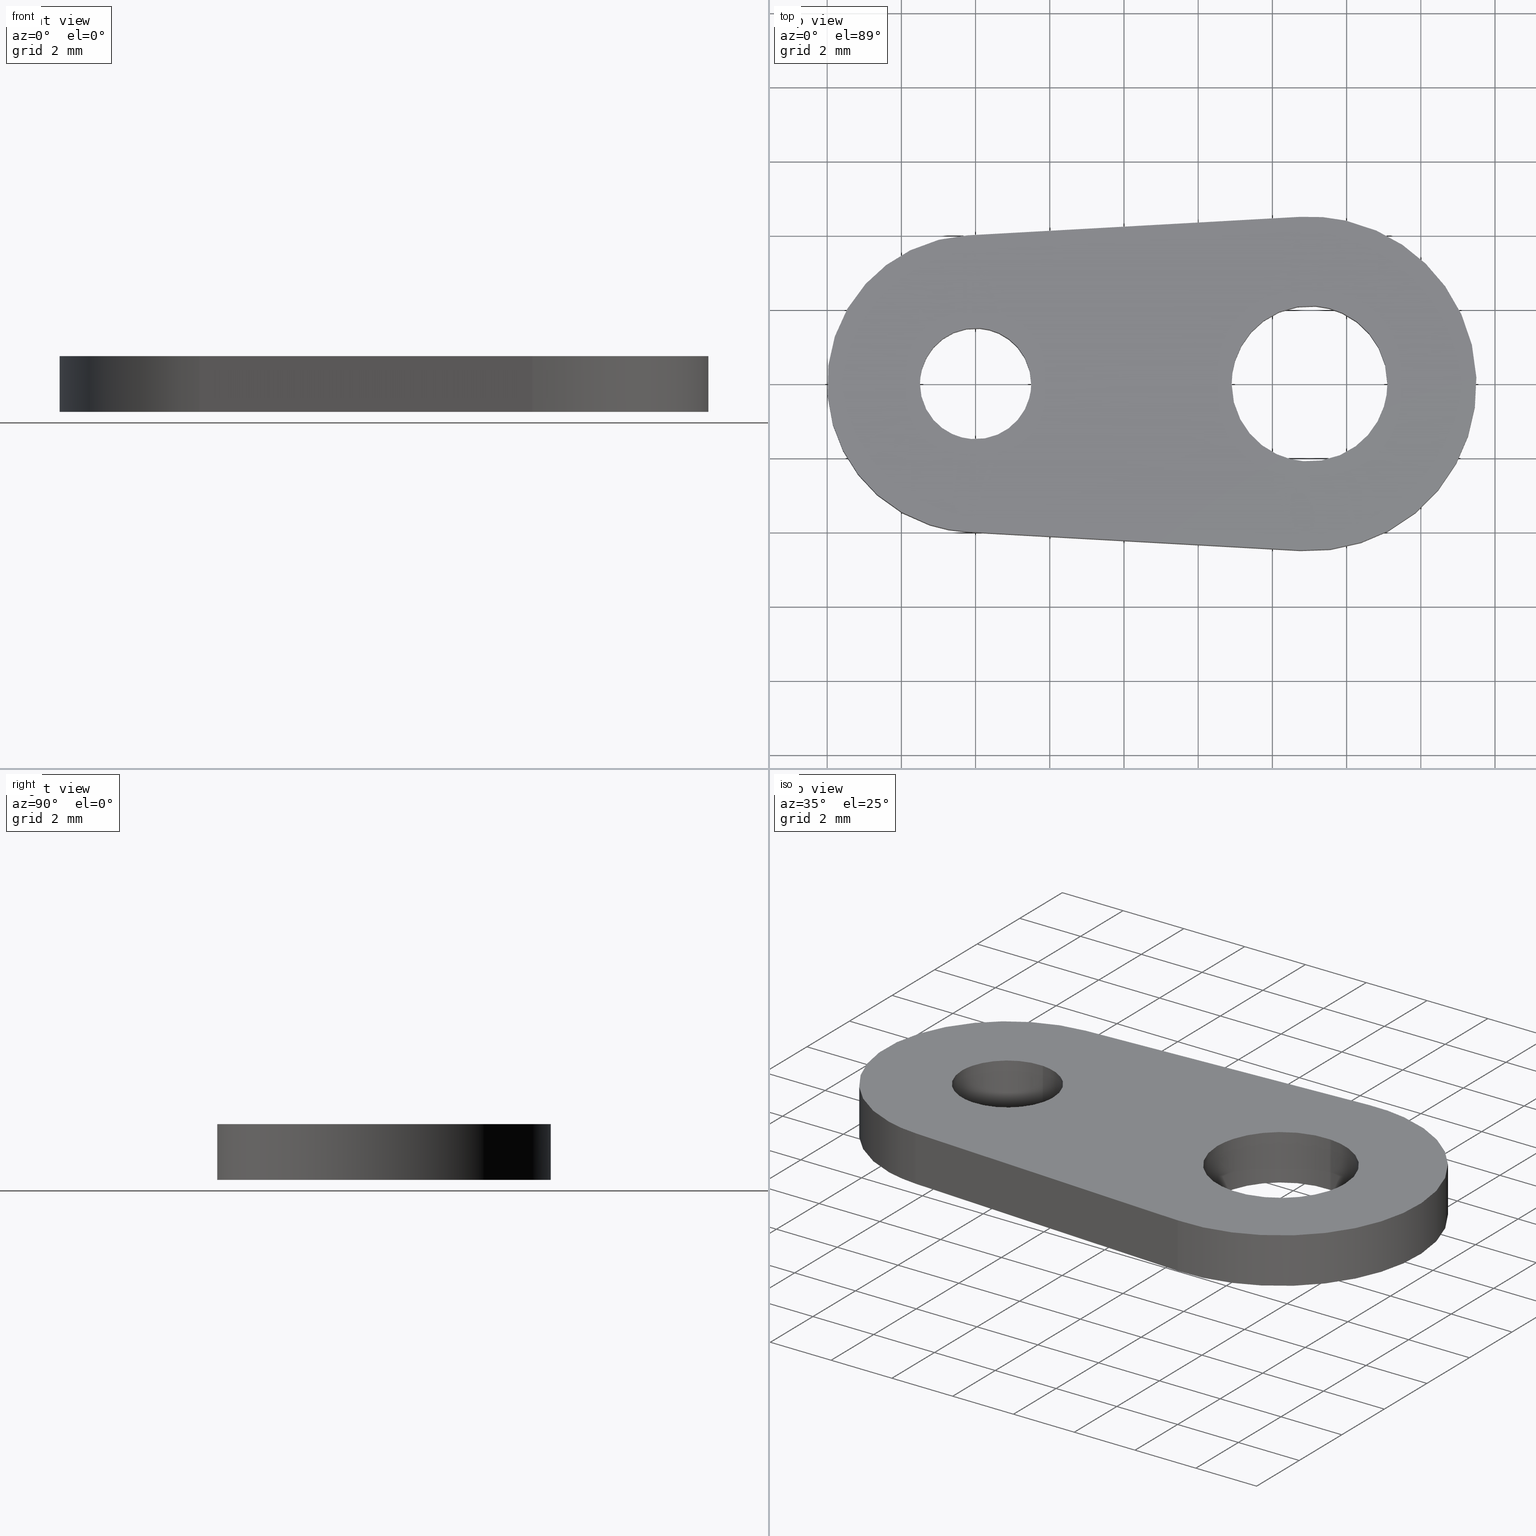
[diagram: canonical four-view strip — front | top / right | iso, engineering-drawing reading convention]
A machine part, canonical four-view strip (front | top / right | iso — engineering-drawing reading convention). The complete STEP part file that produces these views, byte-faithful:
ISO-10303-21;
HEADER;
/****************************************************************
 * Generated by software with PDE/Lib inside                    *
 * PDElib Version 4.4.1-0003, patched  Thursday August 19 11:58 *
 * International Technegroup Inc. (www.iti-oh.com)              *
 ****************************************************************/
FILE_DESCRIPTION((''),'2;1');
FILE_NAME('','2005-12-14T15:38:15',(''),(''),'','CADfix','');
FILE_SCHEMA(('AUTOMOTIVE_DESIGN'));
ENDSEC;
DATA;
#5=APPLICATION_CONTEXT('automotive design');
#6=APPLICATION_PROTOCOL_DEFINITION('Draft International Standard','automotive_design',1998,#5);
#7=PRODUCT_CONTEXT('None',#5,'mechanical');
#8=PRODUCT('terminal','','None',(#7));
#9=PRODUCT_RELATED_PRODUCT_CATEGORY('part','description',(#8));
#10=PRODUCT_DEFINITION_FORMATION('None','None',#8);
#11=PRODUCT_DEFINITION_CONTEXT('part definition',#5,'design');
#12=PRODUCT_DEFINITION('None','None',#10,#11);
#18=(NAMED_UNIT(*)PLANE_ANGLE_UNIT()SI_UNIT($,.RADIAN.));
#19=DIMENSIONAL_EXPONENTS(0.0,0.0,0.0,0.0,0.0,0.0,0.0);
#20=PLANE_ANGLE_MEASURE_WITH_UNIT(PLANE_ANGLE_MEASURE(0.017453292500000),#18);
#24=(CONVERSION_BASED_UNIT('DEGREE',#20)NAMED_UNIT(#19)PLANE_ANGLE_UNIT());
#28=(NAMED_UNIT(*)SI_UNIT($,.STERADIAN.)SOLID_ANGLE_UNIT());
#32=(LENGTH_UNIT()NAMED_UNIT(*)SI_UNIT(.MILLI.,.METRE.));
#34=UNCERTAINTY_MEASURE_WITH_UNIT(LENGTH_MEASURE(0.001000000000000),#32,'DISTANCE_ACCURACY_VALUE','');
#36=(GEOMETRIC_REPRESENTATION_CONTEXT(3)GLOBAL_UNCERTAINTY_ASSIGNED_CONTEXT((#34))GLOBAL_UNIT_ASSIGNED_CONTEXT((#24,#28,#32))REPRESENTATION_CONTEXT('None','None'));
#37=AXIS2_PLACEMENT_3D('',#38,#39,#40);
#38=CARTESIAN_POINT('',(0.0,0.0,0.0));
#39=DIRECTION('',(0.0,0.0,1.0));
#40=DIRECTION('',(1.0,0.0,0.0));
#41=ADVANCED_BREP_SHAPE_REPRESENTATION('',(#37,#639),#36);
#42=PRODUCT_DEFINITION_SHAPE('','',#12);
#43=SHAPE_DEFINITION_REPRESENTATION(#42,#41);
#44=CARTESIAN_POINT('',(-0.117688643591768,-1.495376000599691,1.537499999999945));
#45=CARTESIAN_POINT('',(-1.613064644191460,-1.377687357007923,1.537499999999945));
#46=CARTESIAN_POINT('',(-1.495376000599691,0.117688643591768,1.537499999999945));
#47=CARTESIAN_POINT('',(-1.377687357007923,1.613064644191460,1.537499999999945));
#48=CARTESIAN_POINT('',(0.117688643591768,1.495376000599691,1.537499999999945));
#49=CARTESIAN_POINT('',(-0.117688643591768,-1.495376000599691,-0.038437499999999));
#50=CARTESIAN_POINT('',(-1.613064644191460,-1.377687357007923,-0.038437499999999));
#51=CARTESIAN_POINT('',(-1.495376000599691,0.117688643591768,-0.038437499999999));
#52=CARTESIAN_POINT('',(-1.377687357007923,1.613064644191460,-0.038437499999999));
#53=CARTESIAN_POINT('',(0.117688643591768,1.495376000599691,-0.038437499999999));
#61=(BOUNDED_SURFACE()B_SPLINE_SURFACE(2,1,((#44,#49),(#45,#50),(#46,#51),(#47,#52),(#48,#53)),.UNSPECIFIED.,.F.,.F.,.U.)B_SPLINE_SURFACE_WITH_KNOTS((3,2,3),(2,2),(3.141592653589793,4.712388980384690,6.283185307179586),(0.0,1.0),.UNSPECIFIED.)GEOMETRIC_REPRESENTATION_ITEM()RATIONAL_B_SPLINE_SURFACE(((1.0,1.0),(0.707106781186548,0.707106781186548),(1.0,1.0),(0.707106781186548,0.707106781186548),(1.0,1.0)))REPRESENTATION_ITEM('')SURFACE());
#62=CARTESIAN_POINT('',(-1.500000000000000,0.0,0.0));
#63=VERTEX_POINT('',#62);
#64=CARTESIAN_POINT('',(-0.117688565662104,-1.495376006732885,1.318390E-016));
#65=VERTEX_POINT('',#64);
#66=CARTESIAN_POINT('',(-1.500000000000000,0.0,0.0));
#67=CARTESIAN_POINT('',(-1.500000000000000,-1.386585882454591,0.0));
#68=CARTESIAN_POINT('',(-0.117688565662104,-1.495376006732886,1.318390E-016));
#76=(BOUNDED_CURVE()B_SPLINE_CURVE(2,(#66,#67,#68),.UNSPECIFIED.,.F.,.U.)B_SPLINE_CURVE_WITH_KNOTS((3,3),(0.0,0.236331318499916),.UNSPECIFIED.)CURVE()GEOMETRIC_REPRESENTATION_ITEM()RATIONAL_B_SPLINE_CURVE((1.0,0.723120637672529,0.969723393459196))REPRESENTATION_ITEM(''));
#77=EDGE_CURVE('',#63,#65,#76,.T.);
#78=ORIENTED_EDGE('',*,*,#77,.F.);
#79=CARTESIAN_POINT('',(0.117688565662104,1.495376006732885,1.318390E-016));
#80=VERTEX_POINT('',#79);
#81=CARTESIAN_POINT('',(0.117688565662104,1.495376006732885,1.318390E-016));
#82=CARTESIAN_POINT('',(0.058935082220194,1.500000000000000,0.0));
#83=CARTESIAN_POINT('',(0.0,1.500000000000000,0.0));
#84=CARTESIAN_POINT('',(-1.500000000000000,1.500000000000000,0.0));
#85=CARTESIAN_POINT('',(-1.500000000000000,0.0,0.0));
#93=(BOUNDED_CURVE()B_SPLINE_CURVE(2,(#81,#82,#83,#84,#85),.UNSPECIFIED.,.F.,.U.)B_SPLINE_CURVE_WITH_KNOTS((3,2,3),(0.736331318499916,0.750000000000000,1.0),.UNSPECIFIED.)CURVE()GEOMETRIC_REPRESENTATION_ITEM()RATIONAL_B_SPLINE_CURVE((0.969723393459196,0.983986143514018,1.0,0.707106781186548,1.0))REPRESENTATION_ITEM(''));
#94=EDGE_CURVE('',#80,#63,#93,.T.);
#95=ORIENTED_EDGE('',*,*,#94,.F.);
#96=CARTESIAN_POINT('',(0.117688566621308,1.495376006657394,1.499999999999946));
#97=VERTEX_POINT('',#96);
#98=CARTESIAN_POINT('',(0.117688566621308,1.495376006657394,1.499999999999946));
#99=CARTESIAN_POINT('',(0.117688565662104,1.495376006732885,1.318390E-016));
#100=QUASI_UNIFORM_CURVE('',1,(#98,#99),.UNSPECIFIED.,.F.,.U.);
#101=EDGE_CURVE('',#97,#80,#100,.T.);
#102=ORIENTED_EDGE('',*,*,#101,.F.);
#103=CARTESIAN_POINT('',(-1.500000000000000,0.0,1.499999999999946));
#104=VERTEX_POINT('',#103);
#105=CARTESIAN_POINT('',(0.117688566621308,1.495376006657395,1.499999999999946));
#106=CARTESIAN_POINT('',(0.058935083183849,1.500000000000000,1.499999999999946));
#107=CARTESIAN_POINT('',(0.0,1.500000000000000,1.499999999999946));
#108=CARTESIAN_POINT('',(-1.500000000000000,1.500000000000000,1.499999999999946));
#109=CARTESIAN_POINT('',(-1.500000000000000,0.0,1.499999999999946));
#117=(BOUNDED_CURVE()B_SPLINE_CURVE(2,(#105,#106,#107,#108,#109),.UNSPECIFIED.,.F.,.U.)B_SPLINE_CURVE_WITH_KNOTS((3,2,3),(0.736331318279997,0.750000000000000,1.0),.UNSPECIFIED.)CURVE()GEOMETRIC_REPRESENTATION_ITEM()RATIONAL_B_SPLINE_CURVE((0.969723393000241,0.983986143256367,1.0,0.707106781186548,1.0))REPRESENTATION_ITEM(''));
#118=EDGE_CURVE('',#97,#104,#117,.T.);
#119=ORIENTED_EDGE('',*,*,#118,.T.);
#120=CARTESIAN_POINT('',(-0.117688566621308,-1.495376006657394,1.499999999999946));
#121=VERTEX_POINT('',#120);
#122=CARTESIAN_POINT('',(-1.500000000000000,0.0,1.499999999999946));
#123=CARTESIAN_POINT('',(-1.500000000000000,-1.386585880670251,1.499999999999946));
#124=CARTESIAN_POINT('',(-0.117688566621308,-1.495376006657395,1.499999999999945));
#132=(BOUNDED_CURVE()B_SPLINE_CURVE(2,(#122,#123,#124),.UNSPECIFIED.,.F.,.U.)B_SPLINE_CURVE_WITH_KNOTS((3,3),(0.0,0.236331318279997),.UNSPECIFIED.)CURVE()GEOMETRIC_REPRESENTATION_ITEM()RATIONAL_B_SPLINE_CURVE((1.0,0.723120637930181,0.969723393000241))REPRESENTATION_ITEM(''));
#133=EDGE_CURVE('',#104,#121,#132,.T.);
#134=ORIENTED_EDGE('',*,*,#133,.T.);
#135=CARTESIAN_POINT('',(-0.117688566621308,-1.495376006657394,1.499999999999946));
#136=CARTESIAN_POINT('',(-0.117688565662104,-1.495376006732885,1.318390E-016));
#137=QUASI_UNIFORM_CURVE('',1,(#135,#136),.UNSPECIFIED.,.F.,.U.);
#138=EDGE_CURVE('',#121,#65,#137,.T.);
#139=ORIENTED_EDGE('',*,*,#138,.T.);
#140=EDGE_LOOP('',(#78,#95,#102,#119,#134,#139));
#141=FACE_OUTER_BOUND('',#140,.T.);
#142=ADVANCED_FACE('',(#141),#61,.F.);
#143=CARTESIAN_POINT('',(0.117688643591768,1.495376000599691,1.537499999999945));
#144=CARTESIAN_POINT('',(1.613064644191460,1.377687357007923,1.537499999999945));
#145=CARTESIAN_POINT('',(1.495376000599691,-0.117688643591768,1.537499999999945));
#146=CARTESIAN_POINT('',(1.377687357007923,-1.613064644191460,1.537499999999945));
#147=CARTESIAN_POINT('',(-0.117688643591768,-1.495376000599691,1.537499999999945));
#148=CARTESIAN_POINT('',(0.117688643591768,1.495376000599691,-0.038437499999999));
#149=CARTESIAN_POINT('',(1.613064644191460,1.377687357007923,-0.038437499999999));
#150=CARTESIAN_POINT('',(1.495376000599691,-0.117688643591768,-0.038437499999999));
#151=CARTESIAN_POINT('',(1.377687357007923,-1.613064644191460,-0.038437499999999));
#152=CARTESIAN_POINT('',(-0.117688643591768,-1.495376000599691,-0.038437499999999));
#160=(BOUNDED_SURFACE()B_SPLINE_SURFACE(2,1,((#143,#148),(#144,#149),(#145,#150),(#146,#151),(#147,#152)),.UNSPECIFIED.,.F.,.F.,.U.)B_SPLINE_SURFACE_WITH_KNOTS((3,2,3),(2,2),(0.0,1.570796326794897,3.141592653589793),(0.0,1.0),.UNSPECIFIED.)GEOMETRIC_REPRESENTATION_ITEM()RATIONAL_B_SPLINE_SURFACE(((1.0,1.0),(0.707106781186548,0.707106781186548),(1.0,1.0),(0.707106781186548,0.707106781186548),(1.0,1.0)))REPRESENTATION_ITEM('')SURFACE());
#161=CARTESIAN_POINT('',(1.500000000000000,0.0,0.0));
#162=VERTEX_POINT('',#161);
#163=CARTESIAN_POINT('',(-0.117688565662104,-1.495376006732885,1.318390E-016));
#164=CARTESIAN_POINT('',(-0.058935082220194,-1.500000000000000,0.0));
#165=CARTESIAN_POINT('',(0.0,-1.500000000000000,0.0));
#166=CARTESIAN_POINT('',(1.500000000000000,-1.500000000000000,0.0));
#167=CARTESIAN_POINT('',(1.500000000000000,0.0,0.0));
#175=(BOUNDED_CURVE()B_SPLINE_CURVE(2,(#163,#164,#165,#166,#167),.UNSPECIFIED.,.F.,.U.)B_SPLINE_CURVE_WITH_KNOTS((3,2,3),(0.236331318499916,0.250000000000000,0.500000000000000),.UNSPECIFIED.)CURVE()GEOMETRIC_REPRESENTATION_ITEM()RATIONAL_B_SPLINE_CURVE((0.969723393459196,0.983986143514018,1.0,0.707106781186548,1.0))REPRESENTATION_ITEM(''));
#176=EDGE_CURVE('',#65,#162,#175,.T.);
#177=ORIENTED_EDGE('',*,*,#176,.F.);
#178=ORIENTED_EDGE('',*,*,#138,.F.);
#179=CARTESIAN_POINT('',(1.500000000000000,0.0,1.499999999999946));
#180=VERTEX_POINT('',#179);
#181=CARTESIAN_POINT('',(-0.117688566621308,-1.495376006657395,1.499999999999946));
#182=CARTESIAN_POINT('',(-0.058935083183849,-1.500000000000000,1.499999999999946));
#183=CARTESIAN_POINT('',(0.0,-1.500000000000000,1.499999999999946));
#184=CARTESIAN_POINT('',(1.500000000000000,-1.500000000000000,1.499999999999946));
#185=CARTESIAN_POINT('',(1.500000000000000,0.0,1.499999999999946));
#193=(BOUNDED_CURVE()B_SPLINE_CURVE(2,(#181,#182,#183,#184,#185),.UNSPECIFIED.,.F.,.U.)B_SPLINE_CURVE_WITH_KNOTS((3,2,3),(0.236331318279997,0.250000000000000,0.500000000000000),.UNSPECIFIED.)CURVE()GEOMETRIC_REPRESENTATION_ITEM()RATIONAL_B_SPLINE_CURVE((0.969723393000241,0.983986143256367,1.0,0.707106781186548,1.0))REPRESENTATION_ITEM(''));
#194=EDGE_CURVE('',#121,#180,#193,.T.);
#195=ORIENTED_EDGE('',*,*,#194,.T.);
#196=CARTESIAN_POINT('',(1.500000000000000,0.0,1.499999999999946));
#197=CARTESIAN_POINT('',(1.500000000000000,1.386585880670247,1.499999999999946));
#198=CARTESIAN_POINT('',(0.117688566621308,1.495376006657394,1.499999999999946));
#206=(BOUNDED_CURVE()B_SPLINE_CURVE(2,(#196,#197,#198),.UNSPECIFIED.,.F.,.U.)B_SPLINE_CURVE_WITH_KNOTS((3,3),(0.500000000000000,0.736331318279996),.UNSPECIFIED.)CURVE()GEOMETRIC_REPRESENTATION_ITEM()RATIONAL_B_SPLINE_CURVE((1.0,0.723120637930181,0.969723393000240))REPRESENTATION_ITEM(''));
#207=EDGE_CURVE('',#180,#97,#206,.T.);
#208=ORIENTED_EDGE('',*,*,#207,.T.);
#209=ORIENTED_EDGE('',*,*,#101,.T.);
#210=CARTESIAN_POINT('',(1.500000000000000,0.0,0.0));
#211=CARTESIAN_POINT('',(1.500000000000000,1.386585882454591,0.0));
#212=CARTESIAN_POINT('',(0.117688565662104,1.495376006732886,1.318390E-016));
#220=(BOUNDED_CURVE()B_SPLINE_CURVE(2,(#210,#211,#212),.UNSPECIFIED.,.F.,.U.)B_SPLINE_CURVE_WITH_KNOTS((3,3),(0.500000000000000,0.736331318499916),.UNSPECIFIED.)CURVE()GEOMETRIC_REPRESENTATION_ITEM()RATIONAL_B_SPLINE_CURVE((1.0,0.723120637672529,0.969723393459196))REPRESENTATION_ITEM(''));
#221=EDGE_CURVE('',#162,#80,#220,.T.);
#222=ORIENTED_EDGE('',*,*,#221,.F.);
#223=EDGE_LOOP('',(#177,#178,#195,#208,#209,#222));
#224=FACE_OUTER_BOUND('',#223,.T.);
#225=ADVANCED_FACE('',(#224),#160,.F.);
#226=CARTESIAN_POINT('',(8.835235898971524,-2.093526400839568,1.537499999999945));
#227=CARTESIAN_POINT('',(6.741709498131957,-1.928762299811092,1.537499999999945));
#228=CARTESIAN_POINT('',(6.906473599160432,0.164764101028476,1.537499999999945));
#229=CARTESIAN_POINT('',(7.071237700188908,2.258290501868045,1.537499999999945));
#230=CARTESIAN_POINT('',(9.164764101028476,2.093526400839568,1.537499999999945));
#231=CARTESIAN_POINT('',(8.835235898971524,-2.093526400839568,-0.038437499999999));
#232=CARTESIAN_POINT('',(6.741709498131957,-1.928762299811092,-0.038437499999999));
#233=CARTESIAN_POINT('',(6.906473599160432,0.164764101028476,-0.038437499999999));
#234=CARTESIAN_POINT('',(7.071237700188908,2.258290501868045,-0.038437499999999));
#235=CARTESIAN_POINT('',(9.164764101028476,2.093526400839568,-0.038437499999999));
#243=(BOUNDED_SURFACE()B_SPLINE_SURFACE(2,1,((#226,#231),(#227,#232),(#228,#233),(#229,#234),(#230,#235)),.UNSPECIFIED.,.F.,.F.,.U.)B_SPLINE_SURFACE_WITH_KNOTS((3,2,3),(2,2),(0.0,3.479393923934000,6.958787847867999),(0.0,1.0),.UNSPECIFIED.)GEOMETRIC_REPRESENTATION_ITEM()RATIONAL_B_SPLINE_SURFACE(((1.0,1.0),(0.707106781186548,0.707106781186548),(1.0,1.0),(0.707106781186548,0.707106781186548),(1.0,1.0)))REPRESENTATION_ITEM('')SURFACE());
#244=CARTESIAN_POINT('',(6.900000000000000,0.0,0.0));
#245=VERTEX_POINT('',#244);
#246=CARTESIAN_POINT('',(8.835236821771373,-2.093526473465082,7.566864E-015));
#247=VERTEX_POINT('',#246);
#248=CARTESIAN_POINT('',(6.900000000000000,0.0,0.0));
#249=CARTESIAN_POINT('',(6.900000000000000,-1.941221749104916,0.0));
#250=CARTESIAN_POINT('',(8.835236821771373,-2.093526473465082,7.566864E-015));
#258=(BOUNDED_CURVE()B_SPLINE_CURVE(2,(#248,#249,#250),.UNSPECIFIED.,.F.,.U.)B_SPLINE_CURVE_WITH_KNOTS((3,3),(0.0,0.236331451756262),.UNSPECIFIED.)CURVE()GEOMETRIC_REPRESENTATION_ITEM()RATIONAL_B_SPLINE_CURVE((1.0,0.723120481553009,0.969723671555235))REPRESENTATION_ITEM(''));
#259=EDGE_CURVE('',#245,#247,#258,.T.);
#260=ORIENTED_EDGE('',*,*,#259,.F.);
#261=CARTESIAN_POINT('',(9.164763178228631,2.093526473465082,7.743806E-015));
#262=VERTEX_POINT('',#261);
#263=CARTESIAN_POINT('',(9.164763178228631,2.093526473465082,7.743806E-015));
#264=CARTESIAN_POINT('',(9.082508297633888,2.099999999999999,0.0));
#265=CARTESIAN_POINT('',(9.0,2.100000000000000,0.0));
#266=CARTESIAN_POINT('',(6.900000000000000,2.100000000000000,0.0));
#267=CARTESIAN_POINT('',(6.900000000000000,0.0,0.0));
#275=(BOUNDED_CURVE()B_SPLINE_CURVE(2,(#263,#264,#265,#266,#267),.UNSPECIFIED.,.F.,.U.)B_SPLINE_CURVE_WITH_KNOTS((3,2,3),(0.736331451756262,0.750000000000000,1.0),.UNSPECIFIED.)CURVE()GEOMETRIC_REPRESENTATION_ITEM()RATIONAL_B_SPLINE_CURVE((0.969723671555235,0.983986299633538,1.0,0.707106781186548,1.0))REPRESENTATION_ITEM(''));
#276=EDGE_CURVE('',#262,#245,#275,.T.);
#277=ORIENTED_EDGE('',*,*,#276,.F.);
#278=CARTESIAN_POINT('',(9.164763189592669,2.093526472570723,1.499999999999946));
#279=VERTEX_POINT('',#278);
#280=CARTESIAN_POINT('',(9.164763189592669,2.093526472570723,1.499999999999946));
#281=CARTESIAN_POINT('',(9.164763178228631,2.093526473465082,7.743806E-015));
#282=QUASI_UNIFORM_CURVE('',1,(#280,#281),.UNSPECIFIED.,.F.,.U.);
#283=EDGE_CURVE('',#279,#262,#282,.T.);
#284=ORIENTED_EDGE('',*,*,#283,.F.);
#285=CARTESIAN_POINT('',(6.900000000000000,0.0,1.499999999999946));
#286=VERTEX_POINT('',#285);
#287=CARTESIAN_POINT('',(9.164763189592669,2.093526472570723,1.499999999999946));
#288=CARTESIAN_POINT('',(9.082508309050661,2.100000000000001,1.499999999999947));
#289=CARTESIAN_POINT('',(9.0,2.100000000000000,1.499999999999946));
#290=CARTESIAN_POINT('',(6.900000000000000,2.100000000000000,1.499999999999946));
#291=CARTESIAN_POINT('',(6.900000000000000,0.0,1.499999999999946));
#299=(BOUNDED_CURVE()B_SPLINE_CURVE(2,(#287,#288,#289,#290,#291),.UNSPECIFIED.,.F.,.U.)B_SPLINE_CURVE_WITH_KNOTS((3,2,3),(0.736331449895215,0.750000000000000,1.0),.UNSPECIFIED.)CURVE()GEOMETRIC_REPRESENTATION_ITEM()RATIONAL_B_SPLINE_CURVE((0.969723667671367,0.983986297453187,1.0,0.707106781186548,1.0))REPRESENTATION_ITEM(''));
#300=EDGE_CURVE('',#279,#286,#299,.T.);
#301=ORIENTED_EDGE('',*,*,#300,.T.);
#302=CARTESIAN_POINT('',(8.835236810407334,-2.093526472570723,1.499999999999946));
#303=VERTEX_POINT('',#302);
#304=CARTESIAN_POINT('',(6.900000000000000,0.0,1.499999999999946));
#305=CARTESIAN_POINT('',(6.900000000000000,-1.941221727965150,1.499999999999947));
#306=CARTESIAN_POINT('',(8.835236810407334,-2.093526472570723,1.499999999999946));
#314=(BOUNDED_CURVE()B_SPLINE_CURVE(2,(#304,#305,#306),.UNSPECIFIED.,.F.,.U.)B_SPLINE_CURVE_WITH_KNOTS((3,3),(0.0,0.236331449895216),.UNSPECIFIED.)CURVE()GEOMETRIC_REPRESENTATION_ITEM()RATIONAL_B_SPLINE_CURVE((1.0,0.723120483733360,0.969723667671368))REPRESENTATION_ITEM(''));
#315=EDGE_CURVE('',#286,#303,#314,.T.);
#316=ORIENTED_EDGE('',*,*,#315,.T.);
#317=CARTESIAN_POINT('',(8.835236810407334,-2.093526472570723,1.499999999999946));
#318=CARTESIAN_POINT('',(8.835236821771373,-2.093526473465082,7.566864E-015));
#319=QUASI_UNIFORM_CURVE('',1,(#317,#318),.UNSPECIFIED.,.F.,.U.);
#320=EDGE_CURVE('',#303,#247,#319,.T.);
#321=ORIENTED_EDGE('',*,*,#320,.T.);
#322=EDGE_LOOP('',(#260,#277,#284,#301,#316,#321));
#323=FACE_OUTER_BOUND('',#322,.T.);
#324=ADVANCED_FACE('',(#323),#243,.F.);
#325=CARTESIAN_POINT('',(9.164764101028476,2.093526400839568,1.537499999999945));
#326=CARTESIAN_POINT('',(11.258290501868046,1.928762299811092,1.537499999999945));
#327=CARTESIAN_POINT('',(11.093526400839570,-0.164764101028476,1.537499999999945));
#328=CARTESIAN_POINT('',(10.928762299811092,-2.258290501868045,1.537499999999945));
#329=CARTESIAN_POINT('',(8.835235898971524,-2.093526400839568,1.537499999999945));
#330=CARTESIAN_POINT('',(9.164764101028476,2.093526400839568,-0.038437499999999));
#331=CARTESIAN_POINT('',(11.258290501868046,1.928762299811092,-0.038437499999999));
#332=CARTESIAN_POINT('',(11.093526400839570,-0.164764101028476,-0.038437499999999));
#333=CARTESIAN_POINT('',(10.928762299811092,-2.258290501868045,-0.038437499999999));
#334=CARTESIAN_POINT('',(8.835235898971524,-2.093526400839568,-0.038437499999999));
#342=(BOUNDED_SURFACE()B_SPLINE_SURFACE(2,1,((#325,#330),(#326,#331),(#327,#332),(#328,#333),(#329,#334)),.UNSPECIFIED.,.F.,.F.,.U.)B_SPLINE_SURFACE_WITH_KNOTS((3,2,3),(2,2),(0.0,3.479393923933999,6.958787847867998),(0.0,1.0),.UNSPECIFIED.)GEOMETRIC_REPRESENTATION_ITEM()RATIONAL_B_SPLINE_SURFACE(((1.0,1.0),(0.707106781186548,0.707106781186548),(1.0,1.0),(0.707106781186548,0.707106781186548),(1.0,1.0)))REPRESENTATION_ITEM('')SURFACE());
#343=CARTESIAN_POINT('',(11.100000000000000,0.0,0.0));
#344=VERTEX_POINT('',#343);
#345=CARTESIAN_POINT('',(8.835236821771373,-2.093526473465082,7.566864E-015));
#346=CARTESIAN_POINT('',(8.917491702366116,-2.100000000000001,0.0));
#347=CARTESIAN_POINT('',(9.0,-2.100000000000000,0.0));
#348=CARTESIAN_POINT('',(11.100000000000000,-2.100000000000000,0.0));
#349=CARTESIAN_POINT('',(11.100000000000000,0.0,0.0));
#357=(BOUNDED_CURVE()B_SPLINE_CURVE(2,(#345,#346,#347,#348,#349),.UNSPECIFIED.,.F.,.U.)B_SPLINE_CURVE_WITH_KNOTS((3,2,3),(0.236331451756262,0.250000000000000,0.500000000000000),.UNSPECIFIED.)CURVE()GEOMETRIC_REPRESENTATION_ITEM()RATIONAL_B_SPLINE_CURVE((0.969723671555236,0.983986299633539,1.0,0.707106781186548,1.0))REPRESENTATION_ITEM(''));
#358=EDGE_CURVE('',#247,#344,#357,.T.);
#359=ORIENTED_EDGE('',*,*,#358,.F.);
#360=ORIENTED_EDGE('',*,*,#320,.F.);
#361=CARTESIAN_POINT('',(11.100000000000000,0.0,1.499999999999946));
#362=VERTEX_POINT('',#361);
#363=CARTESIAN_POINT('',(8.835236810407334,-2.093526472570723,1.499999999999946));
#364=CARTESIAN_POINT('',(8.917491690949342,-2.100000000000000,1.499999999999946));
#365=CARTESIAN_POINT('',(9.0,-2.100000000000000,1.499999999999946));
#366=CARTESIAN_POINT('',(11.100000000000000,-2.100000000000000,1.499999999999946));
#367=CARTESIAN_POINT('',(11.100000000000000,0.0,1.499999999999946));
#375=(BOUNDED_CURVE()B_SPLINE_CURVE(2,(#363,#364,#365,#366,#367),.UNSPECIFIED.,.F.,.U.)B_SPLINE_CURVE_WITH_KNOTS((3,2,3),(0.236331449895216,0.250000000000000,0.500000000000000),.UNSPECIFIED.)CURVE()GEOMETRIC_REPRESENTATION_ITEM()RATIONAL_B_SPLINE_CURVE((0.969723667671368,0.983986297453187,1.0,0.707106781186548,1.0))REPRESENTATION_ITEM(''));
#376=EDGE_CURVE('',#303,#362,#375,.T.);
#377=ORIENTED_EDGE('',*,*,#376,.T.);
#378=CARTESIAN_POINT('',(11.100000000000000,0.0,1.499999999999946));
#379=CARTESIAN_POINT('',(11.100000000000000,1.941221727965144,1.499999999999947));
#380=CARTESIAN_POINT('',(9.164763189592669,2.093526472570722,1.499999999999946));
#388=(BOUNDED_CURVE()B_SPLINE_CURVE(2,(#378,#379,#380),.UNSPECIFIED.,.F.,.U.)B_SPLINE_CURVE_WITH_KNOTS((3,3),(0.500000000000000,0.736331449895215),.UNSPECIFIED.)CURVE()GEOMETRIC_REPRESENTATION_ITEM()RATIONAL_B_SPLINE_CURVE((1.0,0.723120483733361,0.969723667671367))REPRESENTATION_ITEM(''));
#389=EDGE_CURVE('',#362,#279,#388,.T.);
#390=ORIENTED_EDGE('',*,*,#389,.T.);
#391=ORIENTED_EDGE('',*,*,#283,.T.);
#392=CARTESIAN_POINT('',(11.100000000000000,0.0,0.0));
#393=CARTESIAN_POINT('',(11.100000000000000,1.941221749104914,0.0));
#394=CARTESIAN_POINT('',(9.164763178228629,2.093526473465083,7.743806E-015));
#402=(BOUNDED_CURVE()B_SPLINE_CURVE(2,(#392,#393,#394),.UNSPECIFIED.,.F.,.U.)B_SPLINE_CURVE_WITH_KNOTS((3,3),(0.500000000000000,0.736331451756262),.UNSPECIFIED.)CURVE()GEOMETRIC_REPRESENTATION_ITEM()RATIONAL_B_SPLINE_CURVE((1.0,0.723120481553009,0.969723671555235))REPRESENTATION_ITEM(''));
#403=EDGE_CURVE('',#344,#262,#402,.T.);
#404=ORIENTED_EDGE('',*,*,#403,.F.);
#405=EDGE_LOOP('',(#359,#360,#377,#390,#391,#404));
#406=FACE_OUTER_BOUND('',#405,.T.);
#407=ADVANCED_FACE('',(#406),#342,.F.);
#408=CARTESIAN_POINT('',(-4.874124966081602,4.942641631033743,0.0));
#409=CARTESIAN_POINT('',(14.374125435468169,4.942641631033743,0.0));
#410=CARTESIAN_POINT('',(-4.874124966081602,-4.942641849774140,0.0));
#411=CARTESIAN_POINT('',(14.374125435468169,-4.942641849774140,0.0));
#412=B_SPLINE_SURFACE_WITH_KNOTS('',1,1,((#408,#410),(#409,#411)),.UNSPECIFIED.,.F.,.F.,.U.,(2,2),(2,2),(0.0,19.248250401549779),(0.0,9.885283480807882),.UNSPECIFIED.);
#413=CARTESIAN_POINT('',(-0.222222222222222,3.993822390135875,0.0));
#414=VERTEX_POINT('',#413);
#415=CARTESIAN_POINT('',(-0.222222000000000,-3.993822000000000,0.0));
#416=VERTEX_POINT('',#415);
#417=CARTESIAN_POINT('',(-0.222222222222221,3.993822390135874,0.0));
#418=CARTESIAN_POINT('',(-4.000000094687403,3.783621206439123,0.0));
#419=CARTESIAN_POINT('',(-3.999999999999998,-0.000000100102411,0.0));
#420=CARTESIAN_POINT('',(-3.999999905312596,-3.783621406643947,0.0));
#421=CARTESIAN_POINT('',(-0.222222000000000,-3.993822000000000,0.0));
#429=(BOUNDED_CURVE()B_SPLINE_CURVE(2,(#417,#418,#419,#420,#421),.UNSPECIFIED.,.F.,.U.)B_SPLINE_CURVE_WITH_KNOTS((3,2,3),(0.0,0.500000000000000,1.0),.UNSPECIFIED.)CURVE()GEOMETRIC_REPRESENTATION_ITEM()RATIONAL_B_SPLINE_CURVE((1.0,0.726483148658178,1.0,0.726483148658178,1.0))REPRESENTATION_ITEM(''));
#430=EDGE_CURVE('',#414,#416,#429,.T.);
#431=ORIENTED_EDGE('',*,*,#430,.F.);
#432=CARTESIAN_POINT('',(8.749999893366040,4.493050182969585,0.0));
#433=VERTEX_POINT('',#432);
#434=CARTESIAN_POINT('',(8.749999893366040,4.493050182969585,0.0));
#435=CARTESIAN_POINT('',(-0.222222222222222,3.993822390135875,0.0));
#436=QUASI_UNIFORM_CURVE('',1,(#434,#435),.UNSPECIFIED.,.F.,.U.);
#437=EDGE_CURVE('',#433,#414,#436,.T.);
#438=ORIENTED_EDGE('',*,*,#437,.F.);
#439=CARTESIAN_POINT('',(8.750000000000000,-4.493050000000000,0.0));
#440=VERTEX_POINT('',#439);
#441=CARTESIAN_POINT('',(8.750000000000000,-4.493050000000000,0.0));
#442=CARTESIAN_POINT('',(11.456273578752906,-4.643631285193399,0.0));
#443=CARTESIAN_POINT('',(12.854759688010100,-2.321815614490578,0.0));
#444=CARTESIAN_POINT('',(14.253245797267290,0.000000056212241,0.0));
#445=CARTESIAN_POINT('',(12.854759638321029,2.321815696986119,0.0));
#446=CARTESIAN_POINT('',(11.456273479374758,4.643631337759999,0.0));
#447=CARTESIAN_POINT('',(8.749999893366040,4.493050182969583,0.0));
#455=(BOUNDED_CURVE()B_SPLINE_CURVE(2,(#441,#442,#443,#444,#445,#446,#447),.UNSPECIFIED.,.F.,.U.)B_SPLINE_CURVE_WITH_KNOTS((3,2,2,3),(0.0,0.333333333333333,0.666666666666667,1.0),.UNSPECIFIED.)CURVE()GEOMETRIC_REPRESENTATION_ITEM()RATIONAL_B_SPLINE_CURVE((1.0,0.856613258481236,1.0,0.856613258481236,1.0,0.856613258481236,1.0))REPRESENTATION_ITEM(''));
#456=EDGE_CURVE('',#440,#433,#455,.T.);
#457=ORIENTED_EDGE('',*,*,#456,.F.);
#458=CARTESIAN_POINT('',(-0.222222000000000,-3.993822000000000,0.0));
#459=CARTESIAN_POINT('',(8.750000000000000,-4.493050000000000,0.0));
#460=QUASI_UNIFORM_CURVE('',1,(#458,#459),.UNSPECIFIED.,.F.,.U.);
#461=EDGE_CURVE('',#416,#440,#460,.T.);
#462=ORIENTED_EDGE('',*,*,#461,.F.);
#463=EDGE_LOOP('',(#431,#438,#457,#462));
#464=FACE_OUTER_BOUND('',#463,.T.);
#465=ORIENTED_EDGE('',*,*,#403,.T.);
#466=ORIENTED_EDGE('',*,*,#276,.T.);
#467=ORIENTED_EDGE('',*,*,#259,.T.);
#468=ORIENTED_EDGE('',*,*,#358,.T.);
#469=EDGE_LOOP('',(#465,#466,#467,#468));
#470=FACE_BOUND('',#469,.T.);
#471=ORIENTED_EDGE('',*,*,#221,.T.);
#472=ORIENTED_EDGE('',*,*,#94,.T.);
#473=ORIENTED_EDGE('',*,*,#77,.T.);
#474=ORIENTED_EDGE('',*,*,#176,.T.);
#475=EDGE_LOOP('',(#471,#472,#473,#474));
#476=FACE_BOUND('',#475,.T.);
#477=ADVANCED_FACE('',(#464,#470,#476),#412,.T.);
#478=CARTESIAN_POINT('',(-4.874124966081602,4.942641631033743,1.500000000000000));
#479=CARTESIAN_POINT('',(14.374125435468169,4.942641631033743,1.500000000000000));
#480=CARTESIAN_POINT('',(-4.874124966081602,-4.942641849774140,1.500000000000000));
#481=CARTESIAN_POINT('',(14.374125435468169,-4.942641849774140,1.500000000000000));
#482=B_SPLINE_SURFACE_WITH_KNOTS('',1,1,((#478,#480),(#479,#481)),.UNSPECIFIED.,.F.,.F.,.U.,(2,2),(2,2),(0.0,19.248250401549779),(0.0,9.885283480807882),.UNSPECIFIED.);
#483=CARTESIAN_POINT('',(-0.222222222222222,3.993822390135875,1.499999999999946));
#484=VERTEX_POINT('',#483);
#485=CARTESIAN_POINT('',(-0.222222000000000,-3.993822000000000,1.499999999999946));
#486=VERTEX_POINT('',#485);
#487=CARTESIAN_POINT('',(-0.222222222222221,3.993822390135874,1.499999999999946));
#488=CARTESIAN_POINT('',(-4.000000094687403,3.783621206439123,1.499999999999945));
#489=CARTESIAN_POINT('',(-3.999999999999998,-0.000000100102411,1.499999999999946));
#490=CARTESIAN_POINT('',(-3.999999905312596,-3.783621406643947,1.499999999999945));
#491=CARTESIAN_POINT('',(-0.222222000000000,-3.993822000000000,1.499999999999946));
#499=(BOUNDED_CURVE()B_SPLINE_CURVE(2,(#487,#488,#489,#490,#491),.UNSPECIFIED.,.F.,.U.)B_SPLINE_CURVE_WITH_KNOTS((3,2,3),(0.0,0.500000000000000,1.0),.UNSPECIFIED.)CURVE()GEOMETRIC_REPRESENTATION_ITEM()RATIONAL_B_SPLINE_CURVE((1.0,0.726483148658178,1.0,0.726483148658178,1.0))REPRESENTATION_ITEM(''));
#500=EDGE_CURVE('',#484,#486,#499,.T.);
#501=ORIENTED_EDGE('',*,*,#500,.T.);
#502=CARTESIAN_POINT('',(8.750000000000000,-4.493050000000000,1.499999999999946));
#503=VERTEX_POINT('',#502);
#504=CARTESIAN_POINT('',(-0.222222000000000,-3.993822000000000,1.499999999999946));
#505=CARTESIAN_POINT('',(8.750000000000000,-4.493050000000000,1.499999999999946));
#506=QUASI_UNIFORM_CURVE('',1,(#504,#505),.UNSPECIFIED.,.F.,.U.);
#507=EDGE_CURVE('',#486,#503,#506,.T.);
#508=ORIENTED_EDGE('',*,*,#507,.T.);
#509=CARTESIAN_POINT('',(8.749999893366040,4.493050182969585,1.499999999999946));
#510=VERTEX_POINT('',#509);
#511=CARTESIAN_POINT('',(8.750000000000000,-4.493050000000000,1.499999999999946));
#512=CARTESIAN_POINT('',(11.456273578752906,-4.643631285193399,1.499999999999946));
#513=CARTESIAN_POINT('',(12.854759688010100,-2.321815614490578,1.499999999999946));
#514=CARTESIAN_POINT('',(14.253245797267290,0.000000056212241,1.499999999999946));
#515=CARTESIAN_POINT('',(12.854759638321029,2.321815696986119,1.499999999999946));
#516=CARTESIAN_POINT('',(11.456273479374758,4.643631337759999,1.499999999999946));
#517=CARTESIAN_POINT('',(8.749999893366040,4.493050182969583,1.499999999999946));
#525=(BOUNDED_CURVE()B_SPLINE_CURVE(2,(#511,#512,#513,#514,#515,#516,#517),.UNSPECIFIED.,.F.,.U.)B_SPLINE_CURVE_WITH_KNOTS((3,2,2,3),(0.0,0.333333333333333,0.666666666666667,1.0),.UNSPECIFIED.)CURVE()GEOMETRIC_REPRESENTATION_ITEM()RATIONAL_B_SPLINE_CURVE((1.0,0.856613258481236,1.0,0.856613258481236,1.0,0.856613258481236,1.0))REPRESENTATION_ITEM(''));
#526=EDGE_CURVE('',#503,#510,#525,.T.);
#527=ORIENTED_EDGE('',*,*,#526,.T.);
#528=CARTESIAN_POINT('',(8.749999893366040,4.493050182969585,1.499999999999946));
#529=CARTESIAN_POINT('',(-0.222222222222222,3.993822390135875,1.499999999999946));
#530=QUASI_UNIFORM_CURVE('',1,(#528,#529),.UNSPECIFIED.,.F.,.U.);
#531=EDGE_CURVE('',#510,#484,#530,.T.);
#532=ORIENTED_EDGE('',*,*,#531,.T.);
#533=EDGE_LOOP('',(#501,#508,#527,#532));
#534=FACE_OUTER_BOUND('',#533,.T.);
#535=ORIENTED_EDGE('',*,*,#389,.F.);
#536=ORIENTED_EDGE('',*,*,#376,.F.);
#537=ORIENTED_EDGE('',*,*,#315,.F.);
#538=ORIENTED_EDGE('',*,*,#300,.F.);
#539=EDGE_LOOP('',(#535,#536,#537,#538));
#540=FACE_BOUND('',#539,.T.);
#541=ORIENTED_EDGE('',*,*,#207,.F.);
#542=ORIENTED_EDGE('',*,*,#194,.F.);
#543=ORIENTED_EDGE('',*,*,#133,.F.);
#544=ORIENTED_EDGE('',*,*,#118,.F.);
#545=EDGE_LOOP('',(#541,#542,#543,#544));
#546=FACE_BOUND('',#545,.T.);
#547=ADVANCED_FACE('',(#534,#540,#546),#482,.F.);
#548=CARTESIAN_POINT('',(-0.670384699505950,3.968885962851426,-0.074924997092706));
#549=CARTESIAN_POINT('',(9.198162611303518,4.517986623644361,-0.074924997092706));
#550=CARTESIAN_POINT('',(-0.670384699505950,3.968885962851426,1.574925037325788));
#551=CARTESIAN_POINT('',(9.198162611303518,4.517986623644361,1.574925037325788));
#552=B_SPLINE_SURFACE_WITH_KNOTS('',1,1,((#548,#550),(#549,#551)),.UNSPECIFIED.,.F.,.F.,.U.,(2,2),(2,2),(0.0,9.883811894272778),(0.041708334948495,0.958291687403247),.UNSPECIFIED.);
#553=ORIENTED_EDGE('',*,*,#437,.T.);
#554=CARTESIAN_POINT('',(-0.222222222222222,3.993822390135875,1.499999999999946));
#555=CARTESIAN_POINT('',(-0.222222222222222,3.993822390135875,0.0));
#556=QUASI_UNIFORM_CURVE('',1,(#554,#555),.UNSPECIFIED.,.F.,.U.);
#557=EDGE_CURVE('',#484,#414,#556,.T.);
#558=ORIENTED_EDGE('',*,*,#557,.F.);
#559=ORIENTED_EDGE('',*,*,#531,.F.);
#560=CARTESIAN_POINT('',(8.749999893366040,4.493050182969585,1.499999999999946));
#561=CARTESIAN_POINT('',(8.749999893366040,4.493050182969585,0.0));
#562=QUASI_UNIFORM_CURVE('',1,(#560,#561),.UNSPECIFIED.,.F.,.U.);
#563=EDGE_CURVE('',#510,#433,#562,.T.);
#564=ORIENTED_EDGE('',*,*,#563,.T.);
#565=EDGE_LOOP('',(#553,#558,#559,#564));
#566=FACE_OUTER_BOUND('',#565,.T.);
#567=ADVANCED_FACE('',(#566),#552,.F.);
#568=CARTESIAN_POINT('',(8.710800746791616,-4.490697472770092,1.537499999999945));
#569=CARTESIAN_POINT('',(8.710800746791616,-4.490697472770092,-0.038437499999999));
#570=CARTESIAN_POINT('',(13.611537074555910,-4.806303076299287,1.537499999999946));
#571=CARTESIAN_POINT('',(13.611537074555910,-4.806303076299287,-0.038437499999999));
#572=CARTESIAN_POINT('',(13.498814388823011,0.103291310956021,1.537499999999945));
#573=CARTESIAN_POINT('',(13.498814388823011,0.103291310956021,-0.038437499999999));
#574=CARTESIAN_POINT('',(13.386091703090113,5.012885698211330,1.537499999999946));
#575=CARTESIAN_POINT('',(13.386091703090113,5.012885698211330,-0.038437499999999));
#576=CARTESIAN_POINT('',(8.505004234124947,4.472692610918588,1.537499999999945));
#577=CARTESIAN_POINT('',(8.505004234124947,4.472692610918588,-0.038437499999999));
#585=(BOUNDED_SURFACE()B_SPLINE_SURFACE(1,2,((#568,#570,#572,#574,#576),(#569,#571,#573,#575,#577)),.UNSPECIFIED.,.F.,.F.,.U.)B_SPLINE_SURFACE_WITH_KNOTS((2,2),(3,2,3),(0.0,1.0),(0.0,7.920189556052994,15.840379112105991),.UNSPECIFIED.)GEOMETRIC_REPRESENTATION_ITEM()RATIONAL_B_SPLINE_SURFACE(((1.0,0.675590207615660,1.0,0.675590207615660,1.0),(1.0,0.675590207615660,1.0,0.675590207615660,1.0)))REPRESENTATION_ITEM('')SURFACE());
#586=ORIENTED_EDGE('',*,*,#456,.T.);
#587=ORIENTED_EDGE('',*,*,#563,.F.);
#588=ORIENTED_EDGE('',*,*,#526,.F.);
#589=CARTESIAN_POINT('',(8.750000000000000,-4.493050000000000,1.499999999999946));
#590=CARTESIAN_POINT('',(8.750000000000000,-4.493050000000000,0.0));
#591=QUASI_UNIFORM_CURVE('',1,(#589,#590),.UNSPECIFIED.,.F.,.U.);
#592=EDGE_CURVE('',#503,#440,#591,.T.);
#593=ORIENTED_EDGE('',*,*,#592,.T.);
#594=EDGE_LOOP('',(#586,#587,#588,#593));
#595=FACE_OUTER_BOUND('',#594,.T.);
#596=ADVANCED_FACE('',(#595),#585,.T.);
#597=CARTESIAN_POINT('',(9.198162471510093,-4.517986437632403,-0.074924997092706));
#598=CARTESIAN_POINT('',(-0.670384712163840,-3.968885548977262,-0.074924997092706));
#599=CARTESIAN_POINT('',(9.198162471510093,-4.517986437632403,1.574925037325788));
#600=CARTESIAN_POINT('',(-0.670384712163840,-3.968885548977262,1.574925037325788));
#601=B_SPLINE_SURFACE_WITH_KNOTS('',1,1,((#597,#599),(#598,#600)),.UNSPECIFIED.,.F.,.F.,.U.,(2,2),(2,2),(0.0,9.883811779992604),(0.041708334948495,0.958291687403247),.UNSPECIFIED.);
#602=ORIENTED_EDGE('',*,*,#461,.T.);
#603=ORIENTED_EDGE('',*,*,#592,.F.);
#604=ORIENTED_EDGE('',*,*,#507,.F.);
#605=CARTESIAN_POINT('',(-0.222222000000000,-3.993822000000000,1.499999999999946));
#606=CARTESIAN_POINT('',(-0.222222000000000,-3.993822000000000,0.0));
#607=QUASI_UNIFORM_CURVE('',1,(#605,#606),.UNSPECIFIED.,.F.,.U.);
#608=EDGE_CURVE('',#486,#416,#607,.T.);
#609=ORIENTED_EDGE('',*,*,#608,.T.);
#610=EDGE_LOOP('',(#602,#603,#604,#609));
#611=FACE_OUTER_BOUND('',#610,.T.);
#612=ADVANCED_FACE('',(#611),#601,.F.);
#613=CARTESIAN_POINT('',(-0.117599989959371,3.998270906574684,1.537499999999945));
#614=CARTESIAN_POINT('',(-0.117599989959371,3.998270906574684,-0.038437499999999));
#615=CARTESIAN_POINT('',(-4.046689867045402,3.882705718299178,1.537499999999945));
#616=CARTESIAN_POINT('',(-4.046689867045402,3.882705718299178,-0.038437499999999));
#617=CARTESIAN_POINT('',(-3.999714353371345,-0.047802630003384,1.537499999999945));
#618=CARTESIAN_POINT('',(-3.999714353371345,-0.047802630003384,-0.038437499999999));
#619=CARTESIAN_POINT('',(-3.952738839697288,-3.978310978305947,1.537499999999945));
#620=CARTESIAN_POINT('',(-3.952738839697288,-3.978310978305947,-0.038437499999999));
#621=CARTESIAN_POINT('',(-0.022009291096776,-3.999939448429865,1.537499999999945));
#622=CARTESIAN_POINT('',(-0.022009291096776,-3.999939448429865,-0.038437499999999));
#630=(BOUNDED_SURFACE()B_SPLINE_SURFACE(1,2,((#613,#615,#617,#619,#621),(#614,#616,#618,#620,#622)),.UNSPECIFIED.,.F.,.F.,.U.)B_SPLINE_SURFACE_WITH_KNOTS((2,2),(3,2,3),(0.0,1.0),(0.0,6.545772822843355,13.091545645686709),.UNSPECIFIED.)GEOMETRIC_REPRESENTATION_ITEM()RATIONAL_B_SPLINE_SURFACE(((1.0,0.713250449154182,1.0,0.713250449154182,1.0),(1.0,0.713250449154182,1.0,0.713250449154182,1.0)))REPRESENTATION_ITEM('')SURFACE());
#631=ORIENTED_EDGE('',*,*,#430,.T.);
#632=ORIENTED_EDGE('',*,*,#608,.F.);
#633=ORIENTED_EDGE('',*,*,#500,.F.);
#634=ORIENTED_EDGE('',*,*,#557,.T.);
#635=EDGE_LOOP('',(#631,#632,#633,#634));
#636=FACE_OUTER_BOUND('',#635,.T.);
#637=ADVANCED_FACE('',(#636),#630,.T.);
#638=CLOSED_SHELL('',(#142,#225,#324,#407,#477,#547,#567,#596,#612,#637));
#639=MANIFOLD_SOLID_BREP('terminal',#638);
#645=(NAMED_UNIT(*)PLANE_ANGLE_UNIT()SI_UNIT($,.RADIAN.));
#646=DIMENSIONAL_EXPONENTS(0.0,0.0,0.0,0.0,0.0,0.0,0.0);
#647=PLANE_ANGLE_MEASURE_WITH_UNIT(PLANE_ANGLE_MEASURE(0.017453292500000),#645);
#651=(CONVERSION_BASED_UNIT('DEGREE',#647)NAMED_UNIT(#646)PLANE_ANGLE_UNIT());
#655=(NAMED_UNIT(*)SI_UNIT($,.STERADIAN.)SOLID_ANGLE_UNIT());
#659=(LENGTH_UNIT()NAMED_UNIT(*)SI_UNIT(.MILLI.,.METRE.));
#661=UNCERTAINTY_MEASURE_WITH_UNIT(LENGTH_MEASURE(0.001000000000000),#659,'DISTANCE_ACCURACY_VALUE','');
#663=(GEOMETRIC_REPRESENTATION_CONTEXT(3)GLOBAL_UNCERTAINTY_ASSIGNED_CONTEXT((#661))GLOBAL_UNIT_ASSIGNED_CONTEXT((#651,#655,#659))REPRESENTATION_CONTEXT('','3D'));
ENDSEC;
END-ISO-10303-21;
